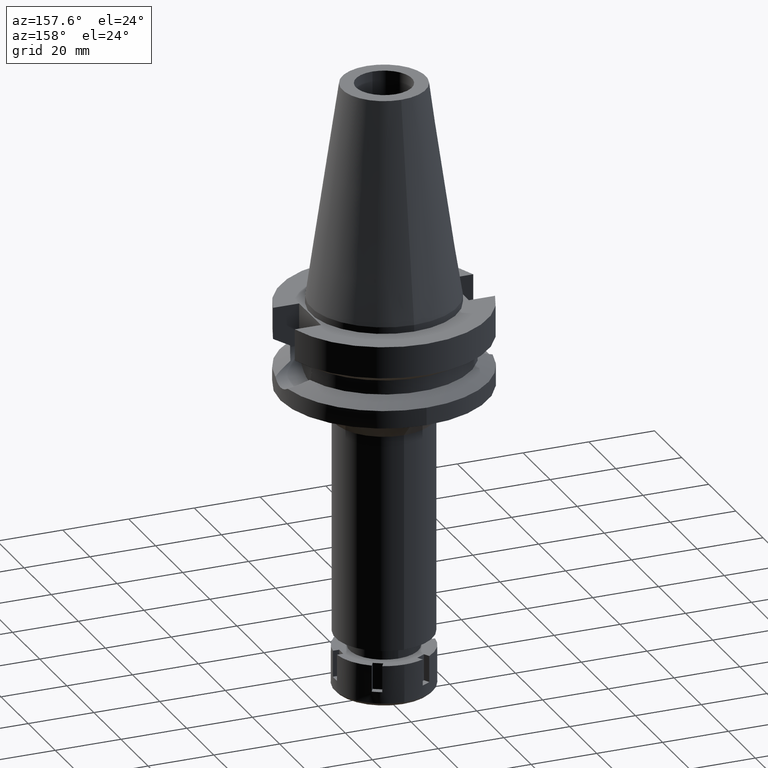
[diagram: clean part render]
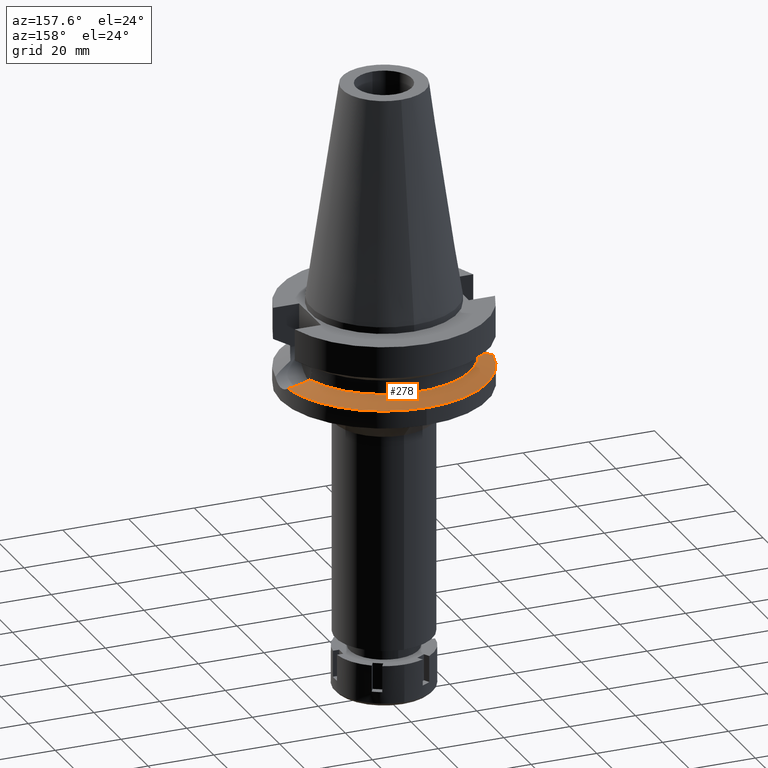
[diagram: same view with one face highlighted and labeled with its STEP entity id]
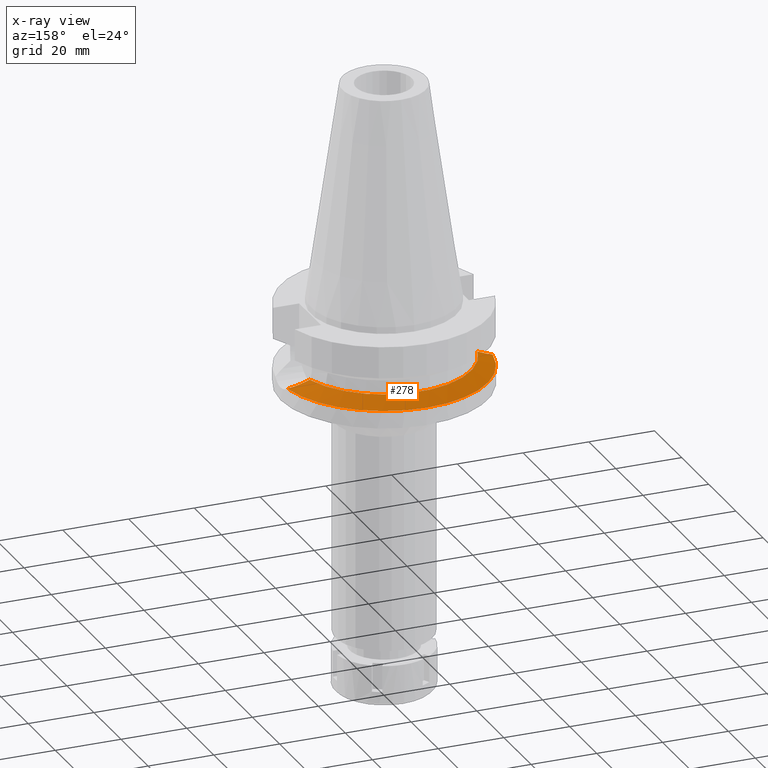
[diagram: x-ray of the same camera — body ghosted, the highlighted face saturated]
A machine part, auxiliary view. The second image highlights one B-rep face of the part: STEP entity #278.
The next image is the same camera in x-ray: the body ghosted, the highlighted face saturated — about 0% of this face is hidden behind the body in this view.
In plain terms, the highlighted conical surface has half-angle 60 deg.
Its self-contained STEP definition (entity closure, byte-faithful):
#26 = CARTESIAN_POINT ( 'NONE',  ( 26.07154111563388454, 6.949483397264506479, -19.02505835432873837 ) ) ;
#132 = DIRECTION ( 'NONE',  ( 0.0000000000000000000, 0.0000000000000000000, -1.000000000000000000 ) ) ;
#159 = DIRECTION ( 'NONE',  ( 0.0000000000000000000, 1.000000000000000000, 0.0000000000000000000 ) ) ;
#186 = ORIENTED_EDGE ( 'NONE', *, *, #1635, .F. ) ;
#205 = ORIENTED_EDGE ( 'NONE', *, *, #2075, .F. ) ;
#242 = EDGE_CURVE ( 'NONE', #2172, #1471, #822, .T. ) ;
#262 = CARTESIAN_POINT ( 'NONE',  ( -25.53175183775000079, 7.097862220092999941, -18.74774300138999905 ) ) ;
#264 = B_SPLINE_CURVE_WITH_KNOTS ( 'NONE', 3,
 ( #262, #2795, #549, #2242, #2510, #3068, #1401, #845, #3636, #3367, #1116, #1672 ),
 .UNSPECIFIED., .F., .F.,
 ( 4, 2, 2, 2, 2, 4 ),
 ( 0.0000000000000000000, 0.2500000000000008882, 0.3750000000000018874, 0.4375000000000020539, 0.5000000000000022204, 1.000000000000000000 ),
 .UNSPECIFIED. ) ;
#278 = ADVANCED_FACE ( 'NONE', ( #743 ), #1945, .T. ) ;
#353 = CARTESIAN_POINT ( 'NONE',  ( 25.53175183775000079, 7.097862220092999941, -18.74774300138999905 ) ) ;
#358 = AXIS2_PLACEMENT_3D ( 'NONE', #3205, #686, #1293 ) ;
#375 = CARTESIAN_POINT ( 'NONE',  ( 27.55992562182676053, 6.434718026165509031, -19.78704749159008358 ) ) ;
#479 = AXIS2_PLACEMENT_3D ( 'NONE', #2601, #635, #3092 ) ;
#509 = VERTEX_POINT ( 'NONE', #1313 ) ;
#528 = ORIENTED_EDGE ( 'NONE', *, *, #242, .F. ) ;
#549 = CARTESIAN_POINT ( 'NONE',  ( -26.76087636958429528, 6.731163623388339623, -19.37882465786910657 ) ) ;
#569 = CARTESIAN_POINT ( 'NONE',  ( 27.17716252403354460, 6.577637635861229626, -19.59141158644034064 ) ) ;
#590 = CARTESIAN_POINT ( 'NONE',  ( 27.51067623752029334, 6.453546875347847767, -19.76188668452956421 ) ) ;
#604 = CIRCLE ( 'NONE', #725, 31.50000000000000000 ) ;
#635 = DIRECTION ( 'NONE',  ( 0.0000000000000000000, 0.0000000000000000000, 1.000000000000000000 ) ) ;
#686 = DIRECTION ( 'NONE',  ( 0.0000000000000000000, 0.0000000000000000000, -1.000000000000000000 ) ) ;
#725 = AXIS2_PLACEMENT_3D ( 'NONE', #2651, #132, #159 ) ;
#743 = FACE_OUTER_BOUND ( 'NONE', #2597, .T. ) ;
#769 = AXIS2_PLACEMENT_3D ( 'NONE', #3515, #3222, #2894 ) ;
#822 = CIRCLE ( 'NONE', #358, 31.50000000000001421 ) ;
#845 = CARTESIAN_POINT ( 'NONE',  ( -28.59700597789185039, 5.999607766210572457, -20.31786717836601497 ) ) ;
#866 = B_SPLINE_CURVE_WITH_KNOTS ( 'NONE', 3,
 ( #2834, #1477, #2022, #3133, #3432, #1157, #1459, #375, #2517, #2042, #590, #1997, #3167, #569, #1443, #26, #353 ),
 .UNSPECIFIED., .F., .F.,
 ( 4, 2, 2, 1, 2, 2, 1, 1, 2, 4 ),
 ( 0.0000000000000000000, 0.5000000000000189848, 0.6250000000000239808, 0.6562500000000243139, 0.6640625000000243139, 0.6679687500000246470, 0.6718750000000250910, 0.6875000000000238698, 0.7500000000000190958, 1.000000000000000000 ),
 .UNSPECIFIED. ) ;
#1116 = CARTESIAN_POINT ( 'NONE',  ( -30.52809671790108226, 4.979355218609561540, -21.30312404058986431 ) ) ;
#1157 = CARTESIAN_POINT ( 'NONE',  ( 27.73337006007429295, 6.367278111734568924, -19.87567145580950978 ) ) ;
#1293 = DIRECTION ( 'NONE',  ( -0.9898094849552905306, 0.1423979757318985240, 0.0000000000000000000 ) ) ;
#1313 = CARTESIAN_POINT ( 'NONE',  ( 31.17899877608999759, 4.485536235554000051, -21.63449434733000132 ) ) ;
#1321 = CARTESIAN_POINT ( 'NONE',  ( 25.53175183775000079, 7.097862220092999941, -18.74774300138999905 ) ) ;
#1401 = CARTESIAN_POINT ( 'NONE',  ( -28.35430706491326447, 6.108243303782318279, -20.19391601141283132 ) ) ;
#1443 = CARTESIAN_POINT ( 'NONE',  ( 26.58021483156374032, 6.788974930053067958, -19.28596742771009431 ) ) ;
#1459 = CARTESIAN_POINT ( 'NONE',  ( 27.64712076477979608, 6.401181559762629369, -19.83159658600018815 ) ) ;
#1471 = VERTEX_POINT ( 'NONE', #2727 ) ;
#1477 = CARTESIAN_POINT ( 'NONE',  ( 30.47211247728578343, 5.021828706632673445, -21.27462280180069243 ) ) ;
#1635 = EDGE_CURVE ( 'NONE', #3435, #2974, #1841, .T. ) ;
#1672 = CARTESIAN_POINT ( 'NONE',  ( -31.17899877608999759, 4.485536235554000051, -21.63449434733000132 ) ) ;
#1783 = EDGE_CURVE ( 'NONE', #1471, #509, #604, .T. ) ;
#1841 = CIRCLE ( 'NONE', #479, 26.50000000000000000 ) ;
#1945 = CONICAL_SURFACE ( 'NONE', #769, 29.00000000000000000, 1.047197551196400456 ) ;
#1997 = CARTESIAN_POINT ( 'NONE',  ( 27.47492430415318054, 6.467158215159376056, -19.74362083173638283 ) ) ;
#2022 = CARTESIAN_POINT ( 'NONE',  ( 29.61025849810485511, 5.536580753545209177, -20.83514737847098530 ) ) ;
#2042 = CARTESIAN_POINT ( 'NONE',  ( 27.52496181772165684, 6.448098683671138254, -19.76918500399221301 ) ) ;
#2075 = EDGE_CURVE ( 'NONE', #509, #3435, #866, .T. ) ;
#2172 = VERTEX_POINT ( 'NONE', #2406 ) ;
#2242 = CARTESIAN_POINT ( 'NONE',  ( -27.58584643849002660, 6.426417506659614531, -19.80116438845799109 ) ) ;
#2406 = CARTESIAN_POINT ( 'NONE',  ( -31.17899877608999759, 4.485536235554000051, -21.63449434733000132 ) ) ;
#2508 = EDGE_CURVE ( 'NONE', #2974, #2172, #264, .T. ) ;
#2510 = CARTESIAN_POINT ( 'NONE',  ( -27.85007275812860428, 6.321997950872697558, -19.93627928549758721 ) ) ;
#2517 = CARTESIAN_POINT ( 'NONE',  ( 27.53371032808133378, 6.444756766006914717, -19.77365435692145468 ) ) ;
#2597 = EDGE_LOOP ( 'NONE', ( #186, #205, #3334, #528, #3287 ) ) ;
#2601 = CARTESIAN_POINT ( 'NONE',  ( 0.0000000000000000000, 0.0000000000000000000, -18.74774300138999905 ) ) ;
#2651 = CARTESIAN_POINT ( 'NONE',  ( 0.0000000000000000000, 0.0000000000000000000, -21.63449434733000132 ) ) ;
#2727 = CARTESIAN_POINT ( 'NONE',  ( 0.0000000000000000000, 31.50000000000000000, -21.63449434733000132 ) ) ;
#2795 = CARTESIAN_POINT ( 'NONE',  ( -26.16784151032714689, 6.923012068935681107, -19.07453243437898394 ) ) ;
#2834 = CARTESIAN_POINT ( 'NONE',  ( 31.17899877608999759, 4.485536235554000051, -21.63449434733000132 ) ) ;
#2894 = DIRECTION ( 'NONE',  ( 0.0000000000000000000, -1.000000000000000000, 0.0000000000000000000 ) ) ;
#2974 = VERTEX_POINT ( 'NONE', #3225 ) ;
#3068 = CARTESIAN_POINT ( 'NONE',  ( -28.23026668259146987, 6.162092020010447868, -20.13055563987870045 ) ) ;
#3092 = DIRECTION ( 'NONE',  ( 0.0000000000000000000, 1.000000000000000000, 0.0000000000000000000 ) ) ;
#3133 = CARTESIAN_POINT ( 'NONE',  ( 28.33923142365785353, 6.117494651492854096, -20.18537446804281643 ) ) ;
#3167 = CARTESIAN_POINT ( 'NONE',  ( 27.32396854387332752, 6.524132572529200758, -19.66648302149670613 ) ) ;
#3205 = CARTESIAN_POINT ( 'NONE',  ( 0.0000000000000000000, 0.0000000000000000000, -21.63449434733000132 ) ) ;
#3222 = DIRECTION ( 'NONE',  ( 0.0000000000000000000, 0.0000000000000000000, -1.000000000000000000 ) ) ;
#3225 = CARTESIAN_POINT ( 'NONE',  ( -25.53175183775000079, 7.097862220092999941, -18.74774300138999905 ) ) ;
#3287 = ORIENTED_EDGE ( 'NONE', *, *, #2508, .F. ) ;
#3334 = ORIENTED_EDGE ( 'NONE', *, *, #1783, .F. ) ;
#3367 = CARTESIAN_POINT ( 'NONE',  ( -29.74564116366206434, 5.454726751910185634, -20.90445039551068263 ) ) ;
#3432 = CARTESIAN_POINT ( 'NONE',  ( 28.07534052874490627, 6.230528408475041857, -20.05044441545989642 ) ) ;
#3435 = VERTEX_POINT ( 'NONE', #1321 ) ;
#3515 = CARTESIAN_POINT ( 'NONE',  ( 0.0000000000000000000, 0.0000000000000000000, -20.19111867435999841 ) ) ;
#3636 = CARTESIAN_POINT ( 'NONE',  ( -28.71738098208678025, 5.944004198749174961, -20.37933456573345126 ) ) ;